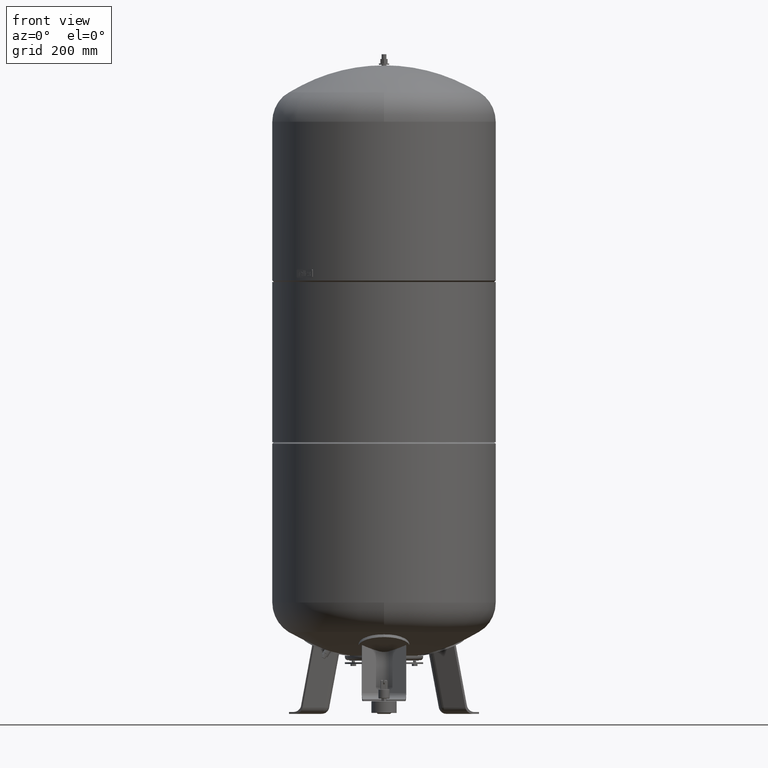
[diagram: clean part render]
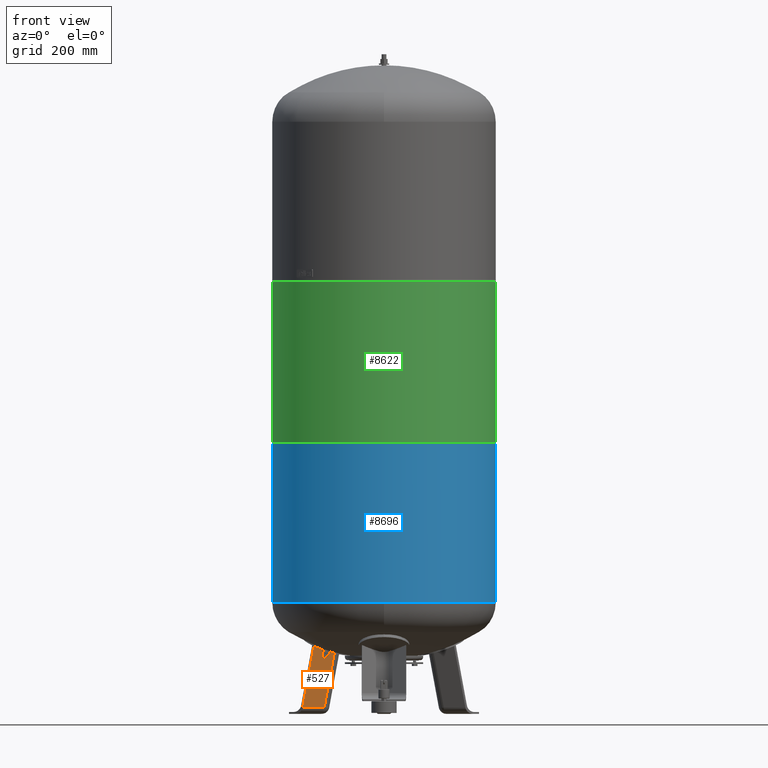
[diagram: same view with three faces highlighted in distinct colors, each labeled with its STEP entity id]
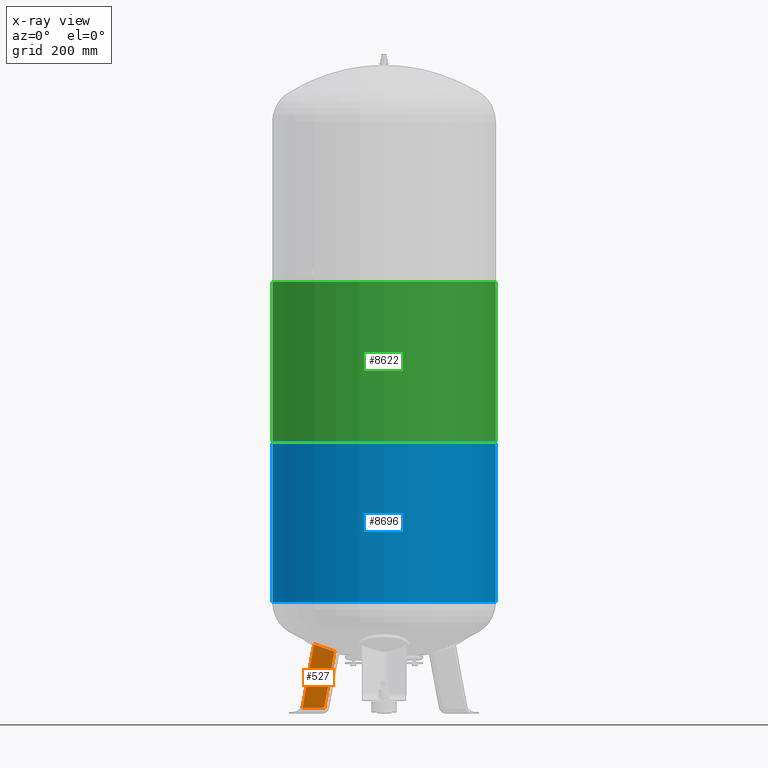
[diagram: x-ray of the same camera — body ghosted, the three highlighted faces saturated]
A machine part, front view with three faces highlighted in distinct colors.
The next image is the same camera in x-ray (body ghosted, the three faces saturated) — at least one of them is partly hidden behind the body in this view.
Their STEP definitions:

[orange] entity #527 — the highlighted planar face has unit normal (0.3243, -0.9325, -0.1588).
#306=CARTESIAN_POINT('',(-198.135653734647060,95.760904562808207,21.029948423057281));
#307=VERTEX_POINT('',#306);
#374=CARTESIAN_POINT('',(-231.247438715379470,48.640281420860845,230.120878968208870));
#375=VERTEX_POINT('',#374);
#383=CARTESIAN_POINT('',(-164.009331508000910,76.058063238802134,206.419109493446830));
#384=VERTEX_POINT('',#383);
#385=CARTESIAN_POINT('',(-164.009331508000910,76.058063238802134,206.419109493446830));
#386=CARTESIAN_POINT('',(-167.296726295767710,74.749478270491409,207.390483448243740));
#387=CARTESIAN_POINT('',(-170.586376587281220,73.434638293147358,208.393982911335000));
#388=CARTESIAN_POINT('',(-180.606511789459150,69.414767171695388,211.538240111227370));
#389=CARTESIAN_POINT('',(-187.343946478440100,66.691476754780510,213.772030183208220));
#390=CARTESIAN_POINT('',(-206.481753689465560,58.903361117512489,220.425795489886210));
#391=CARTESIAN_POINT('',(-218.887273095988320,53.792416942164024,225.106085466333270));
#392=CARTESIAN_POINT('',(-231.247438715379470,48.640281420860845,230.120878968208870));
#393=B_SPLINE_CURVE_WITH_KNOTS('',3,(#385,#386,#387,#388,#389,#390,#391,#392),.UNSPECIFIED.,.F.,.U.,(4,2,2,4),(5.453253502265779,6.515864870681246,8.687819827574995,12.681292855444173),.UNSPECIFIED.);
#394=EDGE_CURVE('',#384,#375,#393,.T.);
#485=CARTESIAN_POINT('',(-164.009331508000910,76.058063238802134,206.419109493446830));
#486=DIRECTION('',(-0.180056805991956,0.103955845408880,-0.978147600733805));
#487=VECTOR('',#486,189.530865210230840);
#488=LINE('',#485,#487);
#489=EDGE_CURVE('',#384,#307,#488,.T.);
#504=CARTESIAN_POINT('',(-194.334005830255360,112.198790578796330,-67.735293817669458));
#505=DIRECTION('',(0.324282864533177,-0.932535537409927,-0.158802063077709));
#506=DIRECTION('',(-0.180056805991956,0.103955845408880,-0.978147600733806));
#507=AXIS2_PLACEMENT_3D('',#504,#505,#506);
#508=PLANE('',#507);
#509=CARTESIAN_POINT('',(-269.736768022737690,70.862106057392296,21.029948423057284));
#510=VERTEX_POINT('',#509);
#511=CARTESIAN_POINT('',(-269.736768022737690,70.862106057392296,21.029948423057284));
#512=DIRECTION('',(0.180056805991955,-0.103955845408880,0.978147600733806));
#513=VECTOR('',#512,213.762146314412800);
#514=LINE('',#511,#513);
#515=EDGE_CURVE('',#510,#375,#514,.T.);
#516=ORIENTED_EDGE('',*,*,#515,.F.);
#517=CARTESIAN_POINT('',(-198.135653734647060,95.760904562808207,21.029948423057281));
#518=DIRECTION('',(-0.944521094592691,-0.328450760190054,4.686537E-017));
#519=VECTOR('',#518,75.806792138366589);
#520=LINE('',#517,#519);
#521=EDGE_CURVE('',#307,#510,#520,.T.);
#522=ORIENTED_EDGE('',*,*,#521,.F.);
#523=ORIENTED_EDGE('',*,*,#489,.F.);
#524=ORIENTED_EDGE('',*,*,#394,.T.);
#525=EDGE_LOOP('',(#516,#522,#523,#524));
#526=FACE_OUTER_BOUND('',#525,.T.);
#527=ADVANCED_FACE('',(#526),#508,.T.);

[blue] entity #8696 — the highlighted cylindrical surface (partial cylindrical patch) has radius 370 mm, axis along (0, 0, 1).
#8630=CARTESIAN_POINT('',(370.000000000000230,0.0,894.666666666666520));
#8631=VERTEX_POINT('',#8630);
#8647=CARTESIAN_POINT('',(-370.000000000000060,-4.531044E-014,894.666666666666400));
#8648=VERTEX_POINT('',#8647);
#8655=CARTESIAN_POINT('',(-5.667479E-015,0.0,894.666666666666400));
#8656=DIRECTION('',(0.0,0.0,1.0));
#8657=DIRECTION('',(1.0,0.0,0.0));
#8658=AXIS2_PLACEMENT_3D('',#8655,#8656,#8657);
#8659=CIRCLE('',#8658,370.000000000000230);
#8660=EDGE_CURVE('',#8648,#8631,#8659,.T.);
#8665=CARTESIAN_POINT('',(-1.117772E-014,0.0,631.833333333333030));
#8666=DIRECTION('',(2.096478E-017,0.0,1.0));
#8667=DIRECTION('',(1.0,0.0,0.0));
#8668=AXIS2_PLACEMENT_3D('',#8665,#8666,#8667);
#8669=CYLINDRICAL_SURFACE('',#8668,370.000000000000060);
#8670=CARTESIAN_POINT('',(369.999999999999940,0.0,368.999999999999890));
#8671=VERTEX_POINT('',#8670);
#8672=CARTESIAN_POINT('',(370.000000000000230,0.0,894.666666666666520));
#8673=DIRECTION('',(0.0,0.0,-1.0));
#8674=VECTOR('',#8673,525.666666666666630);
#8675=LINE('',#8672,#8674);
#8676=EDGE_CURVE('',#8631,#8671,#8675,.T.);
#8677=ORIENTED_EDGE('',*,*,#8676,.F.);
#8678=ORIENTED_EDGE('',*,*,#8660,.F.);
#8679=CARTESIAN_POINT('',(-370.000000000000060,-4.531044E-014,369.0));
#8680=VERTEX_POINT('',#8679);
#8681=CARTESIAN_POINT('',(-370.000000000000060,-4.531044E-014,894.666666666666400));
#8682=DIRECTION('',(0.0,0.0,-1.0));
#8683=VECTOR('',#8682,525.666666666666400);
#8684=LINE('',#8681,#8683);
#8685=EDGE_CURVE('',#8648,#8680,#8684,.T.);
#8686=ORIENTED_EDGE('',*,*,#8685,.T.);
#8687=CARTESIAN_POINT('',(-1.668796E-014,0.0,369.0));
#8688=DIRECTION('',(0.0,0.0,1.0));
#8689=DIRECTION('',(1.0,0.0,0.0));
#8690=AXIS2_PLACEMENT_3D('',#8687,#8688,#8689);
#8691=CIRCLE('',#8690,369.999999999999940);
#8692=EDGE_CURVE('',#8680,#8671,#8691,.T.);
#8693=ORIENTED_EDGE('',*,*,#8692,.T.);
#8694=EDGE_LOOP('',(#8677,#8678,#8686,#8693));
#8695=FACE_OUTER_BOUND('',#8694,.T.);
#8696=ADVANCED_FACE('',(#8695),#8669,.T.);

[green] entity #8622 — the highlighted cylindrical surface (partial cylindrical patch) has radius 370 mm, axis along (0, 0, 1).
#8581=CARTESIAN_POINT('',(-3.944305E-030,0.0,1164.999999999999800));
#8582=DIRECTION('',(2.096478E-017,0.0,1.0));
#8583=DIRECTION('',(1.0,0.0,0.0));
#8584=AXIS2_PLACEMENT_3D('',#8581,#8582,#8583);
#8585=CYLINDRICAL_SURFACE('',#8584,369.999999999999430);
#8586=CARTESIAN_POINT('',(369.999999999999550,0.0,1430.333333333333300));
#8587=VERTEX_POINT('',#8586);
#8588=CARTESIAN_POINT('',(369.999999999999370,0.0,899.666666666666520));
#8589=VERTEX_POINT('',#8588);
#8590=CARTESIAN_POINT('',(369.999999999999550,0.0,1430.333333333333300));
#8591=DIRECTION('',(0.0,0.0,-1.0));
#8592=VECTOR('',#8591,530.666666666666740);
#8593=LINE('',#8590,#8592);
#8594=EDGE_CURVE('',#8587,#8589,#8593,.T.);
#8595=ORIENTED_EDGE('',*,*,#8594,.F.);
#8596=CARTESIAN_POINT('',(-369.999999999999430,-4.531044E-014,1430.333333333333300));
#8597=VERTEX_POINT('',#8596);
#8598=CARTESIAN_POINT('',(5.562655E-015,0.0,1430.333333333333300));
#8599=DIRECTION('',(0.0,0.0,1.0));
#8600=DIRECTION('',(1.0,0.0,0.0));
#8601=AXIS2_PLACEMENT_3D('',#8598,#8599,#8600);
#8602=CIRCLE('',#8601,369.999999999999550);
#8603=EDGE_CURVE('',#8597,#8587,#8602,.T.);
#8604=ORIENTED_EDGE('',*,*,#8603,.F.);
#8605=CARTESIAN_POINT('',(-369.999999999999430,-4.531044E-014,899.666666666666400));
#8606=VERTEX_POINT('',#8605);
#8607=CARTESIAN_POINT('',(-369.999999999999430,-4.531044E-014,1430.333333333333300));
#8608=DIRECTION('',(0.0,0.0,-1.0));
#8609=VECTOR('',#8608,530.666666666666860);
#8610=LINE('',#8607,#8609);
#8611=EDGE_CURVE('',#8597,#8606,#8610,.T.);
#8612=ORIENTED_EDGE('',*,*,#8611,.T.);
#8613=CARTESIAN_POINT('',(-5.562655E-015,0.0,899.666666666666400));
#8614=DIRECTION('',(0.0,0.0,1.0));
#8615=DIRECTION('',(1.0,0.0,0.0));
#8616=AXIS2_PLACEMENT_3D('',#8613,#8614,#8615);
#8617=CIRCLE('',#8616,369.999999999999370);
#8618=EDGE_CURVE('',#8606,#8589,#8617,.T.);
#8619=ORIENTED_EDGE('',*,*,#8618,.T.);
#8620=EDGE_LOOP('',(#8595,#8604,#8612,#8619));
#8621=FACE_OUTER_BOUND('',#8620,.T.);
#8622=ADVANCED_FACE('',(#8621),#8585,.T.);